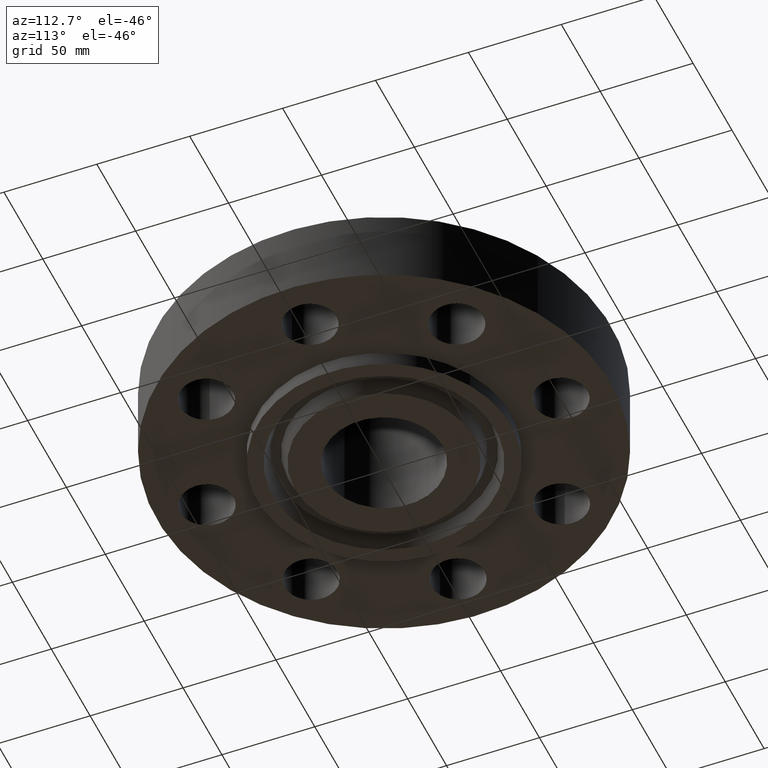
[diagram: clean part render]
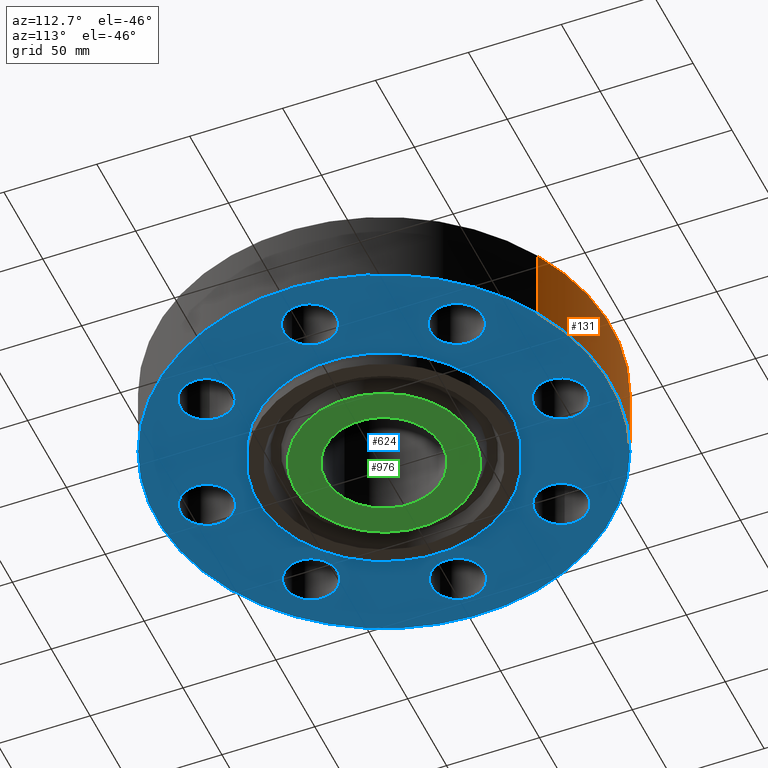
[diagram: same view with three faces highlighted in distinct colors, each labeled with its STEP entity id]
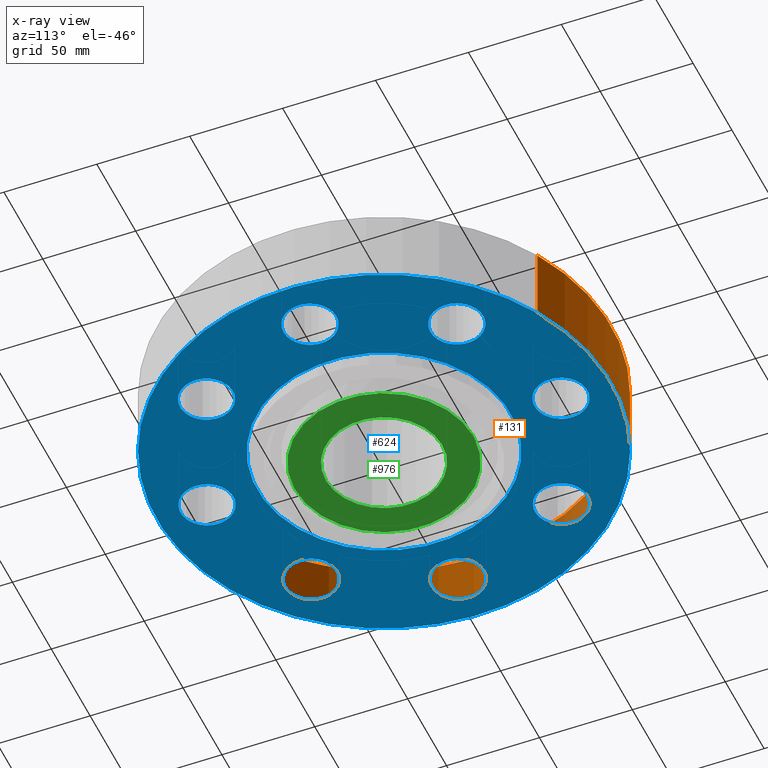
[diagram: x-ray of the same camera — body ghosted, the three highlighted faces saturated]
A machine part, auxiliary view with three faces highlighted in distinct colors.
The next image is the same camera in x-ray (body ghosted, the three faces saturated) — at least one of them is partly hidden behind the body in this view.
Their STEP definitions:

[orange] entity #131 — the highlighted cylindrical surface (partial cylindrical patch) has radius 122.174 mm, axis along (0, 0, -1).
#95=AXIS2_PLACEMENT_3D('Cylinder Axis2P3D',#92,#93,#94) ;
#99=AXIS2_PLACEMENT_3D('Circle Axis2P3D',#97,#98,$) ;
#115=AXIS2_PLACEMENT_3D('Circle Axis2P3D',#113,#114,$) ;
#92=CARTESIAN_POINT('Axis2P3D Location',(0.,0.,1.90350000001)) ;
#97=CARTESIAN_POINT('Axis2P3D Location',(0.,0.,5.59482469102E-016)) ;
#101=CARTESIAN_POINT('Vertex',(-2.3060368407,-4.22117212271,5.59482469102E-016)) ;
#103=CARTESIAN_POINT('Vertex',(2.3060368407,4.22117212271,5.59482469102E-016)) ;
#106=CARTESIAN_POINT('Line Origine',(-2.3060368407,-4.22117212271,0.810000000003)) ;
#110=CARTESIAN_POINT('Vertex',(-2.3060368407,-4.22117212271,1.62000000001)) ;
#113=CARTESIAN_POINT('Axis2P3D Location',(0.,0.,1.62000000001)) ;
#117=CARTESIAN_POINT('Vertex',(2.3060368407,4.22117212271,1.62000000001)) ;
#120=CARTESIAN_POINT('Line Origine',(2.3060368407,4.22117212271,0.810000000003)) ;
#93=DIRECTION('Axis2P3D Direction',(0.,0.,-0.0393700787402)) ;
#94=DIRECTION('Axis2P3D XDirection',(0.0188750212049,0.0345504945626,0.)) ;
#98=DIRECTION('Axis2P3D Direction',(0.,0.,-0.0393700787402)) ;
#107=DIRECTION('Vector Direction',(0.,0.,-0.0393700787402)) ;
#114=DIRECTION('Axis2P3D Direction',(0.,0.,-0.0393700787402)) ;
#121=DIRECTION('Vector Direction',(0.,0.,-0.0393700787402)) ;
#108=VECTOR('Line Direction',#107,0.0393700787402) ;
#122=VECTOR('Line Direction',#121,0.0393700787402) ;
#126=ORIENTED_EDGE('',*,*,#105,.F.) ;
#127=ORIENTED_EDGE('',*,*,#112,.T.) ;
#128=ORIENTED_EDGE('',*,*,#119,.T.) ;
#129=ORIENTED_EDGE('',*,*,#124,.F.) ;
#131=ADVANCED_FACE('PartBody',(#130),#96,.T.) ;
#100=CIRCLE('generated circle',#99,4.81000000002) ;
#116=CIRCLE('generated circle',#115,4.81000000002) ;
#96=CYLINDRICAL_SURFACE('generated cylinder',#95,4.81000000002) ;
#105=EDGE_CURVE('',#102,#104,#100,.T.) ;
#112=EDGE_CURVE('',#102,#111,#109,.F.) ;
#119=EDGE_CURVE('',#111,#118,#116,.T.) ;
#124=EDGE_CURVE('',#104,#118,#123,.F.) ;
#125=EDGE_LOOP('',(#126,#127,#128,#129)) ;
#130=FACE_OUTER_BOUND('',#125,.T.) ;
#109=LINE('Line',#106,#108) ;
#123=LINE('Line',#120,#122) ;
#102=VERTEX_POINT('',#101) ;
#104=VERTEX_POINT('',#103) ;
#111=VERTEX_POINT('',#110) ;
#118=VERTEX_POINT('',#117) ;

[blue] entity #624 — the highlighted planar face has unit normal (0, 0, -1).
#51=AXIS2_PLACEMENT_3D('Circle Axis2P3D',#49,#50,$) ;
#77=AXIS2_PLACEMENT_3D('Circle Axis2P3D',#75,#76,$) ;
#99=AXIS2_PLACEMENT_3D('Circle Axis2P3D',#97,#98,$) ;
#134=AXIS2_PLACEMENT_3D('Circle Axis2P3D',#132,#133,$) ;
#447=AXIS2_PLACEMENT_3D('Circle Axis2P3D',#445,#446,$) ;
#471=AXIS2_PLACEMENT_3D('Circle Axis2P3D',#469,#470,$) ;
#484=AXIS2_PLACEMENT_3D('Plane Axis2P3D',#481,#482,#483) ;
#500=AXIS2_PLACEMENT_3D('Circle Axis2P3D',#498,#499,$) ;
#509=AXIS2_PLACEMENT_3D('Circle Axis2P3D',#507,#508,$) ;
#518=AXIS2_PLACEMENT_3D('Circle Axis2P3D',#516,#517,$) ;
#527=AXIS2_PLACEMENT_3D('Circle Axis2P3D',#525,#526,$) ;
#536=AXIS2_PLACEMENT_3D('Circle Axis2P3D',#534,#535,$) ;
#545=AXIS2_PLACEMENT_3D('Circle Axis2P3D',#543,#544,$) ;
#554=AXIS2_PLACEMENT_3D('Circle Axis2P3D',#552,#553,$) ;
#563=AXIS2_PLACEMENT_3D('Circle Axis2P3D',#561,#562,$) ;
#572=AXIS2_PLACEMENT_3D('Circle Axis2P3D',#570,#571,$) ;
#581=AXIS2_PLACEMENT_3D('Circle Axis2P3D',#579,#580,$) ;
#590=AXIS2_PLACEMENT_3D('Circle Axis2P3D',#588,#589,$) ;
#599=AXIS2_PLACEMENT_3D('Circle Axis2P3D',#597,#598,$) ;
#608=AXIS2_PLACEMENT_3D('Circle Axis2P3D',#606,#607,$) ;
#617=AXIS2_PLACEMENT_3D('Circle Axis2P3D',#615,#616,$) ;
#44=CARTESIAN_POINT('Vertex',(-0.491446234661,4.01847830163,0.)) ;
#49=CARTESIAN_POINT('Axis2P3D Location',(0.,3.75000000002,0.)) ;
#53=CARTESIAN_POINT('Vertex',(0.491446234661,3.4815216984,0.)) ;
#75=CARTESIAN_POINT('Axis2P3D Location',(0.,3.75000000002,0.)) ;
#97=CARTESIAN_POINT('Axis2P3D Location',(0.,0.,5.59482469102E-016)) ;
#101=CARTESIAN_POINT('Vertex',(-2.3060368407,-4.22117212271,5.59482469102E-016)) ;
#103=CARTESIAN_POINT('Vertex',(2.3060368407,4.22117212271,5.59482469102E-016)) ;
#132=CARTESIAN_POINT('Axis2P3D Location',(0.,0.,5.59482469102E-016)) ;
#442=CARTESIAN_POINT('Vertex',(-1.288456135,-2.35850313509,2.79741234551E-016)) ;
#445=CARTESIAN_POINT('Axis2P3D Location',(0.,0.,2.79741234551E-016)) ;
#449=CARTESIAN_POINT('Vertex',(1.288456135,2.35850313509,2.79741234551E-016)) ;
#469=CARTESIAN_POINT('Axis2P3D Location',(0.,0.,2.79741234551E-016)) ;
#481=CARTESIAN_POINT('Axis2P3D Location',(0.,2.68750000001,0.)) ;
#498=CARTESIAN_POINT('Axis2P3D Location',(2.65165042946,2.65165042946,0.)) ;
#502=CARTESIAN_POINT('Vertex',(2.49398829202,3.18899822225,0.)) ;
#504=CARTESIAN_POINT('Vertex',(2.8093125669,2.11430263667,0.)) ;
#507=CARTESIAN_POINT('Axis2P3D Location',(2.65165042946,2.65165042946,0.)) ;
#516=CARTESIAN_POINT('Axis2P3D Location',(3.75000000001,5.59482469102E-016,0.)) ;
#520=CARTESIAN_POINT('Vertex',(4.01847830163,0.491446234661,0.)) ;
#522=CARTESIAN_POINT('Vertex',(3.4815216984,-0.491446234661,0.)) ;
#525=CARTESIAN_POINT('Axis2P3D Location',(3.75000000002,5.59482469102E-016,0.)) ;
#534=CARTESIAN_POINT('Axis2P3D Location',(2.65165042946,-2.65165042946,0.)) ;
#538=CARTESIAN_POINT('Vertex',(3.18899822225,-2.49398829202,0.)) ;
#540=CARTESIAN_POINT('Vertex',(2.11430263667,-2.8093125669,0.)) ;
#543=CARTESIAN_POINT('Axis2P3D Location',(2.65165042946,-2.65165042946,0.)) ;
#552=CARTESIAN_POINT('Axis2P3D Location',(4.19611851827E-016,-3.75000000002,0.)) ;
#556=CARTESIAN_POINT('Vertex',(0.491446234661,-4.01847830163,0.)) ;
#558=CARTESIAN_POINT('Vertex',(-0.491446234661,-3.4815216984,0.)) ;
#561=CARTESIAN_POINT('Axis2P3D Location',(2.62257407392E-016,-3.75000000002,0.)) ;
#570=CARTESIAN_POINT('Axis2P3D Location',(-2.65165042946,-2.65165042946,0.)) ;
#574=CARTESIAN_POINT('Vertex',(-2.49398829202,-3.18899822225,0.)) ;
#576=CARTESIAN_POINT('Vertex',(-2.8093125669,-2.11430263667,0.)) ;
#579=CARTESIAN_POINT('Axis2P3D Location',(-2.65165042946,-2.65165042946,0.)) ;
#588=CARTESIAN_POINT('Axis2P3D Location',(-3.75000000002,-5.59482469102E-016,0.)) ;
#592=CARTESIAN_POINT('Vertex',(-4.01847830163,-0.491446234661,0.)) ;
#594=CARTESIAN_POINT('Vertex',(-3.4815216984,0.491446234661,0.)) ;
#597=CARTESIAN_POINT('Axis2P3D Location',(-3.75000000002,-5.59482469102E-016,0.)) ;
#606=CARTESIAN_POINT('Axis2P3D Location',(-2.65165042946,2.65165042946,0.)) ;
#610=CARTESIAN_POINT('Vertex',(-3.18899822225,2.49398829202,0.)) ;
#612=CARTESIAN_POINT('Vertex',(-2.11430263667,2.8093125669,0.)) ;
#615=CARTESIAN_POINT('Axis2P3D Location',(-2.65165042946,2.65165042946,0.)) ;
#50=DIRECTION('Axis2P3D Direction',(0.,-0.,-0.0393700787402)) ;
#76=DIRECTION('Axis2P3D Direction',(0.,-0.,-0.0393700787402)) ;
#98=DIRECTION('Axis2P3D Direction',(0.,0.,-0.0393700787402)) ;
#133=DIRECTION('Axis2P3D Direction',(0.,0.,-0.0393700787402)) ;
#446=DIRECTION('Axis2P3D Direction',(0.,0.,-0.0393700787402)) ;
#470=DIRECTION('Axis2P3D Direction',(0.,0.,-0.0393700787402)) ;
#482=DIRECTION('Axis2P3D Direction',(0.,0.,-0.0393700787402)) ;
#483=DIRECTION('Axis2P3D XDirection',(0.0393700787402,0.,0.)) ;
#499=DIRECTION('Axis2P3D Direction',(0.,0.,-0.0393700787402)) ;
#508=DIRECTION('Axis2P3D Direction',(0.,0.,-0.0393700787402)) ;
#517=DIRECTION('Axis2P3D Direction',(0.,0.,-0.0393700787402)) ;
#526=DIRECTION('Axis2P3D Direction',(0.,0.,-0.0393700787402)) ;
#535=DIRECTION('Axis2P3D Direction',(0.,0.,-0.0393700787402)) ;
#544=DIRECTION('Axis2P3D Direction',(0.,0.,-0.0393700787402)) ;
#553=DIRECTION('Axis2P3D Direction',(0.,0.,-0.0393700787402)) ;
#562=DIRECTION('Axis2P3D Direction',(0.,0.,-0.0393700787402)) ;
#571=DIRECTION('Axis2P3D Direction',(0.,0.,-0.0393700787402)) ;
#580=DIRECTION('Axis2P3D Direction',(0.,0.,-0.0393700787402)) ;
#589=DIRECTION('Axis2P3D Direction',(0.,0.,-0.0393700787402)) ;
#598=DIRECTION('Axis2P3D Direction',(0.,0.,-0.0393700787402)) ;
#607=DIRECTION('Axis2P3D Direction',(0.,0.,-0.0393700787402)) ;
#616=DIRECTION('Axis2P3D Direction',(0.,0.,-0.0393700787402)) ;
#487=ORIENTED_EDGE('',*,*,#105,.T.) ;
#488=ORIENTED_EDGE('',*,*,#136,.T.) ;
#491=ORIENTED_EDGE('',*,*,#79,.F.) ;
#492=ORIENTED_EDGE('',*,*,#55,.F.) ;
#495=ORIENTED_EDGE('',*,*,#473,.F.) ;
#496=ORIENTED_EDGE('',*,*,#451,.F.) ;
#513=ORIENTED_EDGE('',*,*,#506,.F.) ;
#514=ORIENTED_EDGE('',*,*,#511,.F.) ;
#531=ORIENTED_EDGE('',*,*,#524,.F.) ;
#532=ORIENTED_EDGE('',*,*,#529,.F.) ;
#549=ORIENTED_EDGE('',*,*,#542,.F.) ;
#550=ORIENTED_EDGE('',*,*,#547,.F.) ;
#567=ORIENTED_EDGE('',*,*,#560,.F.) ;
#568=ORIENTED_EDGE('',*,*,#565,.F.) ;
#585=ORIENTED_EDGE('',*,*,#578,.F.) ;
#586=ORIENTED_EDGE('',*,*,#583,.F.) ;
#603=ORIENTED_EDGE('',*,*,#596,.F.) ;
#604=ORIENTED_EDGE('',*,*,#601,.F.) ;
#621=ORIENTED_EDGE('',*,*,#614,.F.) ;
#622=ORIENTED_EDGE('',*,*,#619,.F.) ;
#493=FACE_BOUND('',#490,.T.) ;
#497=FACE_BOUND('',#494,.T.) ;
#515=FACE_BOUND('',#512,.T.) ;
#533=FACE_BOUND('',#530,.T.) ;
#551=FACE_BOUND('',#548,.T.) ;
#569=FACE_BOUND('',#566,.T.) ;
#587=FACE_BOUND('',#584,.T.) ;
#605=FACE_BOUND('',#602,.T.) ;
#623=FACE_BOUND('',#620,.T.) ;
#624=ADVANCED_FACE('PartBody',(#489,#493,#497,#515,#533,#551,#569,#587,#605,#623),#485,.T.) ;
#52=CIRCLE('generated circle',#51,0.560000000002) ;
#78=CIRCLE('generated circle',#77,0.560000000002) ;
#100=CIRCLE('generated circle',#99,4.81000000002) ;
#135=CIRCLE('generated circle',#134,4.81000000002) ;
#448=CIRCLE('generated circle',#447,2.68750000001) ;
#472=CIRCLE('generated circle',#471,2.68750000001) ;
#501=CIRCLE('generated circle',#500,0.560000000002) ;
#510=CIRCLE('generated circle',#509,0.560000000002) ;
#519=CIRCLE('generated circle',#518,0.560000000002) ;
#528=CIRCLE('generated circle',#527,0.560000000002) ;
#537=CIRCLE('generated circle',#536,0.560000000002) ;
#546=CIRCLE('generated circle',#545,0.560000000002) ;
#555=CIRCLE('generated circle',#554,0.560000000002) ;
#564=CIRCLE('generated circle',#563,0.560000000002) ;
#573=CIRCLE('generated circle',#572,0.560000000002) ;
#582=CIRCLE('generated circle',#581,0.560000000002) ;
#591=CIRCLE('generated circle',#590,0.560000000002) ;
#600=CIRCLE('generated circle',#599,0.560000000002) ;
#609=CIRCLE('generated circle',#608,0.560000000002) ;
#618=CIRCLE('generated circle',#617,0.560000000002) ;
#55=EDGE_CURVE('',#45,#54,#52,.T.) ;
#79=EDGE_CURVE('',#54,#45,#78,.T.) ;
#105=EDGE_CURVE('',#102,#104,#100,.T.) ;
#136=EDGE_CURVE('',#104,#102,#135,.T.) ;
#451=EDGE_CURVE('',#443,#450,#448,.T.) ;
#473=EDGE_CURVE('',#450,#443,#472,.T.) ;
#506=EDGE_CURVE('',#503,#505,#501,.T.) ;
#511=EDGE_CURVE('',#505,#503,#510,.T.) ;
#524=EDGE_CURVE('',#521,#523,#519,.T.) ;
#529=EDGE_CURVE('',#523,#521,#528,.T.) ;
#542=EDGE_CURVE('',#539,#541,#537,.T.) ;
#547=EDGE_CURVE('',#541,#539,#546,.T.) ;
#560=EDGE_CURVE('',#557,#559,#555,.T.) ;
#565=EDGE_CURVE('',#559,#557,#564,.T.) ;
#578=EDGE_CURVE('',#575,#577,#573,.T.) ;
#583=EDGE_CURVE('',#577,#575,#582,.T.) ;
#596=EDGE_CURVE('',#593,#595,#591,.T.) ;
#601=EDGE_CURVE('',#595,#593,#600,.T.) ;
#614=EDGE_CURVE('',#611,#613,#609,.T.) ;
#619=EDGE_CURVE('',#613,#611,#618,.T.) ;
#486=EDGE_LOOP('',(#487,#488)) ;
#490=EDGE_LOOP('',(#491,#492)) ;
#494=EDGE_LOOP('',(#495,#496)) ;
#512=EDGE_LOOP('',(#513,#514)) ;
#530=EDGE_LOOP('',(#531,#532)) ;
#548=EDGE_LOOP('',(#549,#550)) ;
#566=EDGE_LOOP('',(#567,#568)) ;
#584=EDGE_LOOP('',(#585,#586)) ;
#602=EDGE_LOOP('',(#603,#604)) ;
#620=EDGE_LOOP('',(#621,#622)) ;
#489=FACE_OUTER_BOUND('',#486,.T.) ;
#485=PLANE('',#484) ;
#45=VERTEX_POINT('',#44) ;
#54=VERTEX_POINT('',#53) ;
#102=VERTEX_POINT('',#101) ;
#104=VERTEX_POINT('',#103) ;
#443=VERTEX_POINT('',#442) ;
#450=VERTEX_POINT('',#449) ;
#503=VERTEX_POINT('',#502) ;
#505=VERTEX_POINT('',#504) ;
#521=VERTEX_POINT('',#520) ;
#523=VERTEX_POINT('',#522) ;
#539=VERTEX_POINT('',#538) ;
#541=VERTEX_POINT('',#540) ;
#557=VERTEX_POINT('',#556) ;
#559=VERTEX_POINT('',#558) ;
#575=VERTEX_POINT('',#574) ;
#577=VERTEX_POINT('',#576) ;
#593=VERTEX_POINT('',#592) ;
#595=VERTEX_POINT('',#594) ;
#611=VERTEX_POINT('',#610) ;
#613=VERTEX_POINT('',#612) ;

[green] entity #976 — the highlighted planar face has unit normal (0, 0, -1).
#363=AXIS2_PLACEMENT_3D('Circle Axis2P3D',#361,#362,$) ;
#387=AXIS2_PLACEMENT_3D('Circle Axis2P3D',#385,#386,$) ;
#929=AXIS2_PLACEMENT_3D('Plane Axis2P3D',#926,#927,#928) ;
#956=AXIS2_PLACEMENT_3D('Circle Axis2P3D',#954,#955,$) ;
#965=AXIS2_PLACEMENT_3D('Circle Axis2P3D',#963,#964,$) ;
#358=CARTESIAN_POINT('Vertex',(0.591850827409,1.08337567266,-0.313000000001)) ;
#361=CARTESIAN_POINT('Axis2P3D Location',(0.,0.,-0.313000000001)) ;
#365=CARTESIAN_POINT('Vertex',(-0.591850827409,-1.08337567266,-0.313000000001)) ;
#385=CARTESIAN_POINT('Axis2P3D Location',(0.,0.,-0.313000000001)) ;
#926=CARTESIAN_POINT('Axis2P3D Location',(0.,1.2345,-0.313000000001)) ;
#954=CARTESIAN_POINT('Axis2P3D Location',(-2.79741234551E-016,0.,-0.313000000001)) ;
#958=CARTESIAN_POINT('Vertex',(-0.906353980735,1.65906983326,-0.313000000001)) ;
#960=CARTESIAN_POINT('Vertex',(0.906353980735,-1.65906983326,-0.313000000001)) ;
#963=CARTESIAN_POINT('Axis2P3D Location',(2.79741234551E-016,0.,-0.313000000001)) ;
#362=DIRECTION('Axis2P3D Direction',(0.,0.,-0.0393700787402)) ;
#386=DIRECTION('Axis2P3D Direction',(0.,0.,-0.0393700787402)) ;
#927=DIRECTION('Axis2P3D Direction',(0.,0.,-0.0393700787402)) ;
#928=DIRECTION('Axis2P3D XDirection',(0.0393700787402,0.,0.)) ;
#955=DIRECTION('Axis2P3D Direction',(0.,0.,-0.0393700787402)) ;
#964=DIRECTION('Axis2P3D Direction',(0.,0.,-0.0393700787402)) ;
#969=ORIENTED_EDGE('',*,*,#962,.T.) ;
#970=ORIENTED_EDGE('',*,*,#967,.T.) ;
#973=ORIENTED_EDGE('',*,*,#367,.F.) ;
#974=ORIENTED_EDGE('',*,*,#389,.F.) ;
#975=FACE_BOUND('',#972,.T.) ;
#976=ADVANCED_FACE('PartBody',(#971,#975),#930,.T.) ;
#364=CIRCLE('generated circle',#363,1.2345) ;
#388=CIRCLE('generated circle',#387,1.2345) ;
#957=CIRCLE('generated circle',#956,1.89050000001) ;
#966=CIRCLE('generated circle',#965,1.89050000001) ;
#367=EDGE_CURVE('',#359,#366,#364,.T.) ;
#389=EDGE_CURVE('',#366,#359,#388,.T.) ;
#962=EDGE_CURVE('',#959,#961,#957,.T.) ;
#967=EDGE_CURVE('',#961,#959,#966,.T.) ;
#968=EDGE_LOOP('',(#969,#970)) ;
#972=EDGE_LOOP('',(#973,#974)) ;
#971=FACE_OUTER_BOUND('',#968,.T.) ;
#930=PLANE('',#929) ;
#359=VERTEX_POINT('',#358) ;
#366=VERTEX_POINT('',#365) ;
#959=VERTEX_POINT('',#958) ;
#961=VERTEX_POINT('',#960) ;